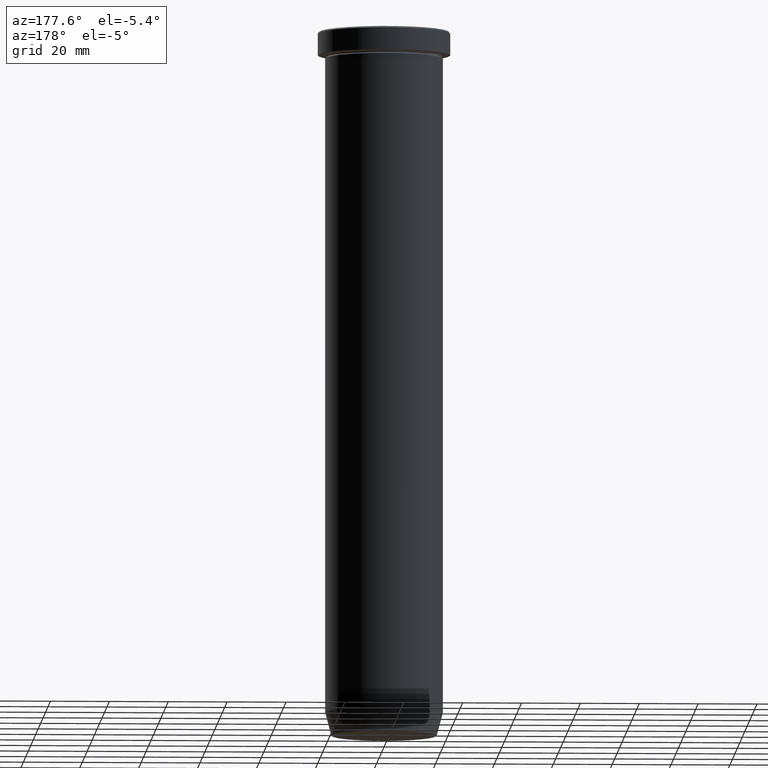
[diagram: clean part render]
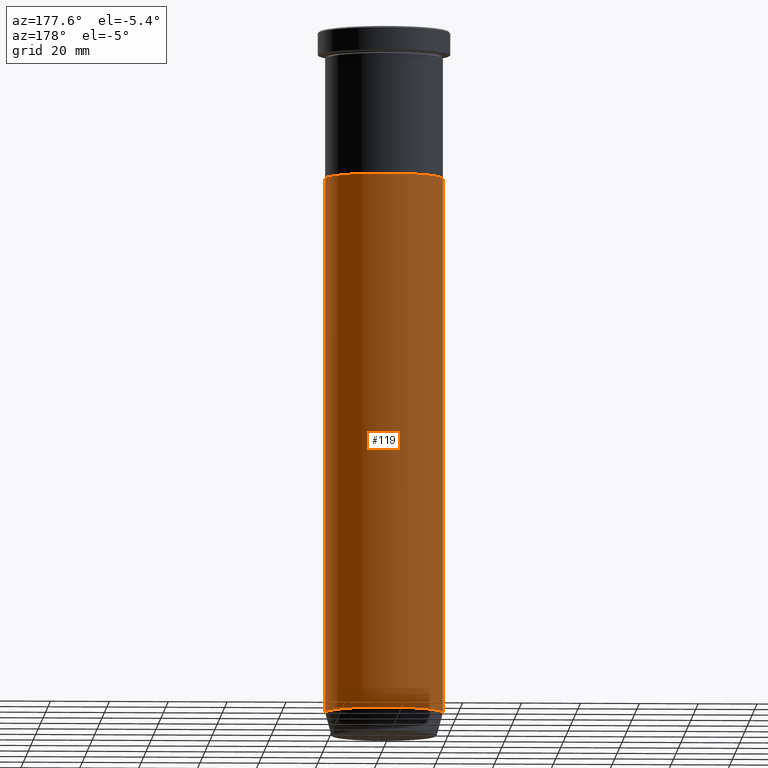
[diagram: same view with one face highlighted and labeled with its STEP entity id]
A machine part, auxiliary view. The second image highlights one B-rep face of the part: STEP entity #119.
In plain terms, the highlighted cylindrical surface (partial cylindrical patch) has radius 20 mm, axis along (-0, -0, 1).
Its self-contained STEP definition (entity closure, byte-faithful):
#53 = DIRECTION ( 'NONE',  ( -0.000000000000000000, -0.000000000000000000, 1.000000000000000000 ) ) ;
#80 = ORIENTED_EDGE ( 'NONE', *, *, #181, .F. ) ;
#88 = CARTESIAN_POINT ( 'NONE',  ( -20.00000000000000355, 2.449293598294706907E-15, -231.9999999999999716 ) ) ;
#94 = CARTESIAN_POINT ( 'NONE',  ( 0.000000000000000000, 0.000000000000000000, -50.00000000000000000 ) ) ;
#115 = CIRCLE ( 'NONE', #323, 20.00000000000000000 ) ;
#119 = ADVANCED_FACE ( 'NONE', ( #534 ), #494, .T. ) ;
#120 = DIRECTION ( 'NONE',  ( -0.000000000000000000, -0.000000000000000000, 1.000000000000000000 ) ) ;
#125 = VECTOR ( 'NONE', #520, 1000.000000000000000 ) ;
#156 = EDGE_CURVE ( 'NONE', #205, #331, #182, .T. ) ;
#181 = EDGE_CURVE ( 'NONE', #380, #288, #115, .T. ) ;
#182 = CIRCLE ( 'NONE', #238, 20.00000000000000355 ) ;
#205 = VERTEX_POINT ( 'NONE', #278 ) ;
#238 = AXIS2_PLACEMENT_3D ( 'NONE', #378, #53, #598 ) ;
#246 = AXIS2_PLACEMENT_3D ( 'NONE', #401, #120, #396 ) ;
#278 = CARTESIAN_POINT ( 'NONE',  ( 20.00000000000000355, 0.000000000000000000, -231.9999999999999716 ) ) ;
#288 = VERTEX_POINT ( 'NONE', #587 ) ;
#292 = DIRECTION ( 'NONE',  ( 1.000000000000000000, 0.000000000000000000, 0.000000000000000000 ) ) ;
#323 = AXIS2_PLACEMENT_3D ( 'NONE', #94, #367, #292 ) ;
#331 = VERTEX_POINT ( 'NONE', #88 ) ;
#362 = CARTESIAN_POINT ( 'NONE',  ( 20.00000000000000355, 0.000000000000000000, 0.000000000000000000 ) ) ;
#365 = LINE ( 'NONE', #362, #554 ) ;
#367 = DIRECTION ( 'NONE',  ( -0.000000000000000000, -0.000000000000000000, 1.000000000000000000 ) ) ;
#378 = CARTESIAN_POINT ( 'NONE',  ( 0.000000000000000000, 0.000000000000000000, -231.9999999999999716 ) ) ;
#380 = VERTEX_POINT ( 'NONE', #398 ) ;
#384 = ORIENTED_EDGE ( 'NONE', *, *, #475, .F. ) ;
#392 = ORIENTED_EDGE ( 'NONE', *, *, #156, .T. ) ;
#396 = DIRECTION ( 'NONE',  ( 1.000000000000000000, 0.000000000000000000, 0.000000000000000000 ) ) ;
#398 = CARTESIAN_POINT ( 'NONE',  ( 20.00000000000000000, 0.000000000000000000, -50.00000000000000000 ) ) ;
#401 = CARTESIAN_POINT ( 'NONE',  ( 0.000000000000000000, 0.000000000000000000, 0.000000000000000000 ) ) ;
#408 = DIRECTION ( 'NONE',  ( -0.000000000000000000, -0.000000000000000000, 1.000000000000000000 ) ) ;
#475 = EDGE_CURVE ( 'NONE', #205, #380, #365, .T. ) ;
#476 = LINE ( 'NONE', #568, #125 ) ;
#489 = EDGE_LOOP ( 'NONE', ( #392, #519, #80, #384 ) ) ;
#494 = CYLINDRICAL_SURFACE ( 'NONE', #246, 20.00000000000000355 ) ;
#519 = ORIENTED_EDGE ( 'NONE', *, *, #579, .T. ) ;
#520 = DIRECTION ( 'NONE',  ( -0.000000000000000000, -0.000000000000000000, 1.000000000000000000 ) ) ;
#534 = FACE_OUTER_BOUND ( 'NONE', #489, .T. ) ;
#554 = VECTOR ( 'NONE', #408, 1000.000000000000000 ) ;
#568 = CARTESIAN_POINT ( 'NONE',  ( -20.00000000000000355, 2.449293598294706907E-15, 0.000000000000000000 ) ) ;
#579 = EDGE_CURVE ( 'NONE', #331, #288, #476, .T. ) ;
#587 = CARTESIAN_POINT ( 'NONE',  ( -20.00000000000000000, 2.449293598294706513E-15, -50.00000000000000000 ) ) ;
#598 = DIRECTION ( 'NONE',  ( 1.000000000000000000, 0.000000000000000000, 0.000000000000000000 ) ) ;